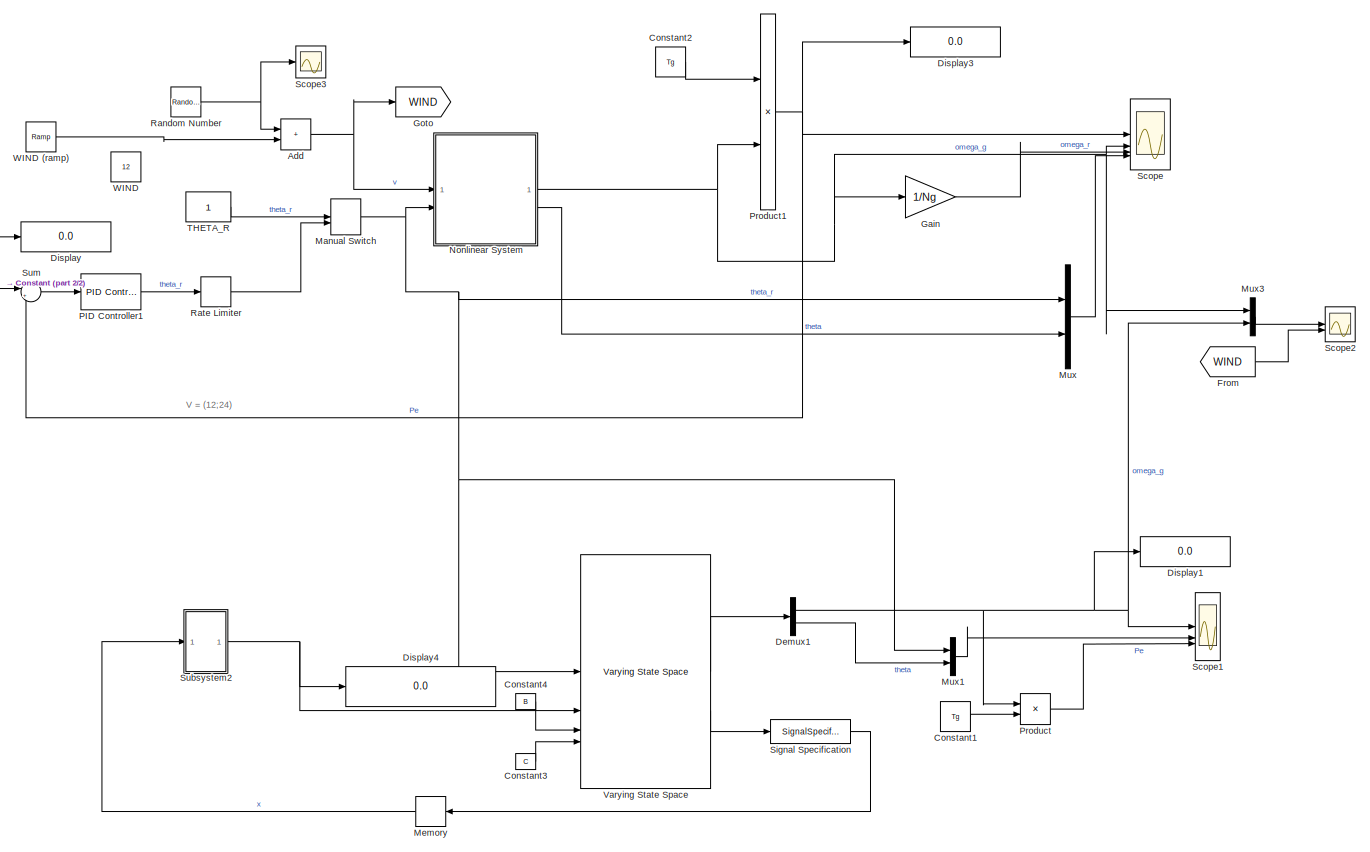
[diagram: root canvas - part 1/2, most of the canvas]
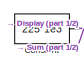
[diagram: root canvas - part 2/2, middle left region]
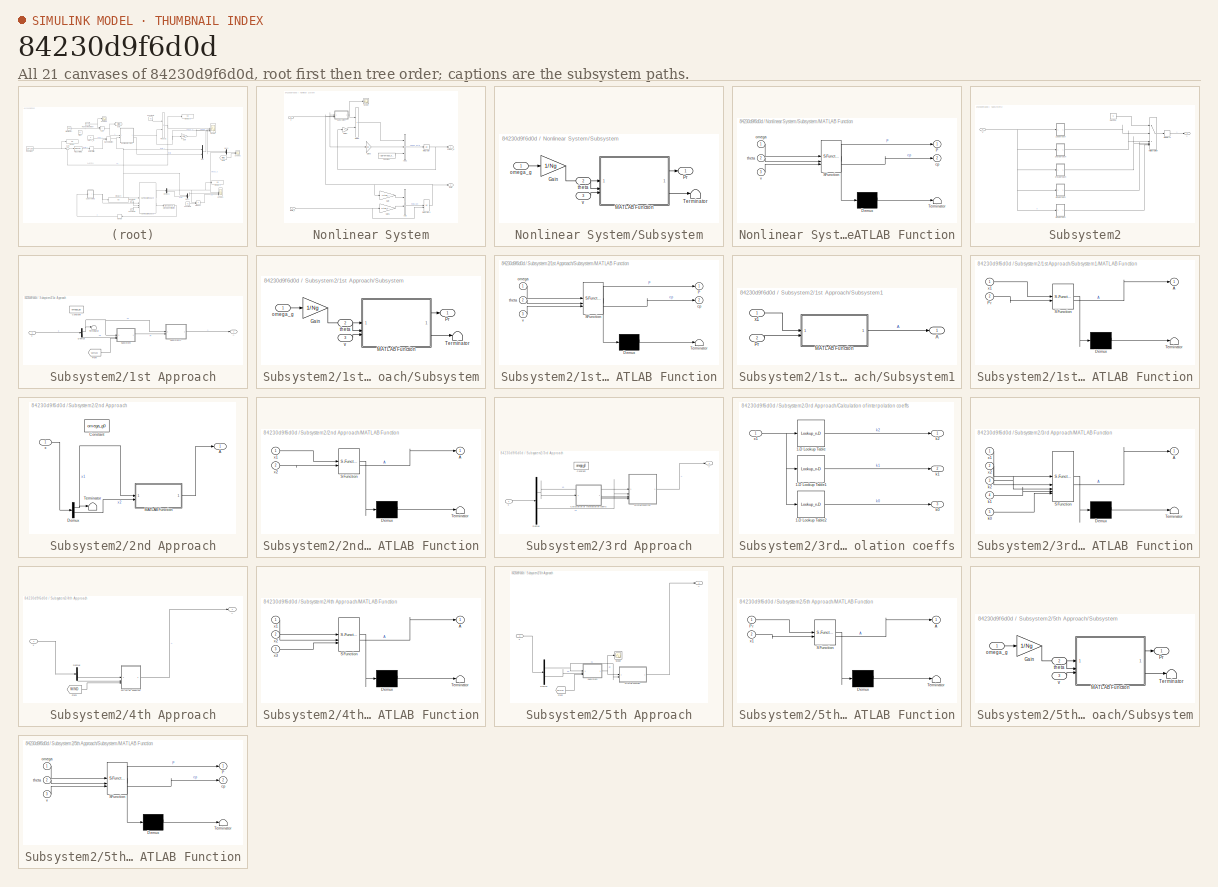
[diagram: thumbnail index - all 21 canvases of the model, root first then tree order]
MODEL slx_84230d9f6d0d
KIND model
CONFIG AbsTol = auto
CONFIG EnableMultiTasking = off
CONFIG FixedStep = 1e-3
CONFIG MaxStep = auto
CONFIG MinStep = auto
CONFIG RelTol = 1e-3
CONFIG SampleTimeConstraint = Unconstrained
CONFIG SolverName = ode8
CONFIG StartTime = 0.0
CONFIG StopTime = 5
BLOCK [Sum] Add
  IconShape = rectangular
BLOCK [Constant] Constant
  Value = 225*1e3
BLOCK [Constant] Constant1
  Value = Tg
BLOCK [Constant] Constant2
  Value = Tg
BLOCK [Constant] Constant3
  Value = C
BLOCK [Constant] Constant4
  Value = B
BLOCK [Demux] Demux1
  Outputs = 2
BLOCK [Display] Display
  Decimation = 1
BLOCK [Display] Display1
  Decimation = 1
BLOCK [Display] Display3
  Decimation = 1
BLOCK [Display] Display4
  Decimation = 1
BLOCK [From] From
  GotoTag = WIND
  TagVisibility = global
BLOCK [Gain] Gain
  Gain = 1/Ng
BLOCK [Goto] Goto
  GotoTag = WIND
  TagVisibility = global
BLOCK [ManualSwitch] Manual Switch
BLOCK [Memory] Memory
  InitialCondition = x0
BLOCK [Mux] Mux
  DisplayOption = bar
  Inputs = 2
BLOCK [Mux] Mux1
  DisplayOption = bar
  Inputs = 2
BLOCK [Mux] Mux3
  DisplayOption = bar
  Inputs = 2
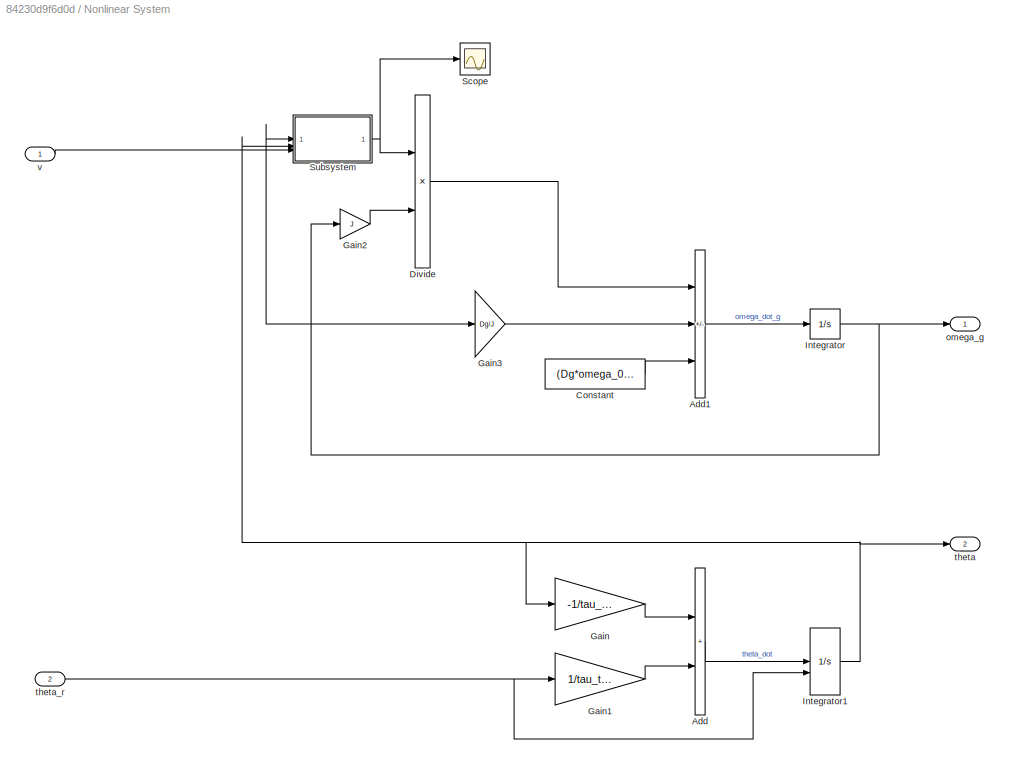
BLOCK [SubSystem] Nonlinear System
BLOCK [Sum] Nonlinear System/Add
  IconShape = rectangular
BLOCK [Sum] Nonlinear System/Add1
  IconShape = rectangular
  Inputs = +-+
BLOCK [Constant] Nonlinear System/Constant
  Value = (Dg*omega_0)/(J*p)
BLOCK [Product] Nonlinear System/Divide
  Inputs = */
BLOCK [Gain] Nonlinear System/Gain
  Gain = -1/tau_theta
BLOCK [Gain] Nonlinear System/Gain1
  Gain = 1/tau_theta
BLOCK [Gain] Nonlinear System/Gain2
  Gain = J
BLOCK [Gain] Nonlinear System/Gain3
  Gain = Dg/J
BLOCK [Integrator] Nonlinear System/Integrator
  InitialCondition = x0(1)
BLOCK [Integrator] Nonlinear System/Integrator1
  InitialCondition = 1
  InitialConditionSource = external
BLOCK [Scope] Nonlinear System/Scope
  Floating = off
  NumInputPorts = 1
  ScopeSpecificationString = Simulink.scopes.TimeScopeBlockCfg('CurrentConfiguration', extmgr.ConfigurationSet(extmgr.Configuration('Core','General UI',true),extmgr.Configuration('Core','Source UI',true),extmgr.Configuration('Sources','WiredSimulink',true,'DataLoggingVariableName','ScopeData2'),extmgr.Configuration('Visuals','Time Domain',true,'SerializedDisplays',{struct('MinYLimReal','-11798.98628','MaxYLimReal','406332.681...<+1402ch>
BLOCK [SubSystem] Nonlinear System/Subsystem
BLOCK [Gain] Nonlinear System/Subsystem/Gain
  Gain = 1/Ng
BLOCK [SubSystem] Nonlinear System/Subsystem/MATLAB Function
  ErrorFcn = Stateflow.Translate.translate
  PermitHierarchicalResolution = ExplicitOnly
  SFBlockType = MATLAB Function
  TreatAsAtomicUnit = on
BLOCK [Demux] Nonlinear System/Subsystem/MATLAB Function/ Demux 
  Outputs = 1
BLOCK [S-Function] Nonlinear System/Subsystem/MATLAB Function/ SFunction 
  EnableBusSupport = on
  FunctionName = sf_sfun
  PortCounts = [3 3]
  SFcnIsStateOwnerBlock = off
  SFunctionDeploymentMode = off
  Tag = Stateflow S-Function 2
BLOCK [Terminator] Nonlinear System/Subsystem/MATLAB Function/ Terminator 
BLOCK [Outport] Nonlinear System/Subsystem/MATLAB Function/P
BLOCK [Outport] Nonlinear System/Subsystem/MATLAB Function/cp
  Port = 2
BLOCK [Inport] Nonlinear System/Subsystem/MATLAB Function/omega
BLOCK [Inport] Nonlinear System/Subsystem/MATLAB Function/theta
  Port = 2
BLOCK [Inport] Nonlinear System/Subsystem/MATLAB Function/v
  Port = 3
BLOCK [Outport] Nonlinear System/Subsystem/Pr
BLOCK [Terminator] Nonlinear System/Subsystem/Terminator
BLOCK [Inport] Nonlinear System/Subsystem/omega_g
  NameLocation = left
BLOCK [Inport] Nonlinear System/Subsystem/theta
  NameLocation = left
  Port = 2
BLOCK [Inport] Nonlinear System/Subsystem/v
  NameLocation = left
  Port = 3
BLOCK [Outport] Nonlinear System/omega_g
BLOCK [Outport] Nonlinear System/theta
  Port = 2
BLOCK [Inport] Nonlinear System/theta_r
  Port = 2
BLOCK [Inport] Nonlinear System/v
BLOCK [Reference] PID Controller1  REF=slpidlib/PID Controller
  LibrarySourceBlock = simulink/Continuous/PID Controller
  SourceBlock = slpidlib/PID Controller
  SourceType = PID 1dof
BLOCK [Product] Product
BLOCK [Product] Product1
BLOCK [RandomNumber] Random Number
  SampleTime = 1e-2
  Variance = 5
BLOCK [RateLimiter] Rate Limiter
  FallingSlewLimit = -theta_dot_max
  RisingSlewLimit = theta_dot_max
  SampleTimeMode = inherited
BLOCK [Scope] Scope
  Floating = off
  NumInputPorts = 4
  ScopeSpecificationString = Simulink.scopes.TimeScopeBlockCfg('CurrentConfiguration', extmgr.ConfigurationSet(extmgr.Configuration('Core','General UI',true),extmgr.Configuration('Core','Source UI',true),extmgr.Configuration('Sources','WiredSimulink',true),extmgr.Configuration('Visuals','Time Domain',true,'SerializedDisplays',{struct('MinYLimReal','224857.3631','MaxYLimReal','225017.12189','YLabelReal','','MinYLimMag','224857...<+4212ch>
BLOCK [Scope] Scope1
  Floating = off
  NumInputPorts = 3
  ScopeSpecificationString = Simulink.scopes.TimeScopeBlockCfg('CurrentConfiguration', extmgr.ConfigurationSet(extmgr.Configuration('Core','General UI',true),extmgr.Configuration('Core','Source UI',true),extmgr.Configuration('Sources','WiredSimulink',true,'DataLoggingVariableName','ScopeData1'),extmgr.Configuration('Visuals','Time Domain',true,'SerializedDisplays',{struct('MinYLimReal','94.33758','MaxYLimReal','107.16179','YL...<+3004ch>
BLOCK [Scope] Scope2
  Floating = off
  NumInputPorts = 2
  ScopeSpecificationString = Simulink.scopes.TimeScopeBlockCfg('CurrentConfiguration', extmgr.ConfigurationSet(extmgr.Configuration('Core','General UI',true),extmgr.Configuration('Core','Source UI',true),extmgr.Configuration('Sources','WiredSimulink',true,'DataLoggingVariableName','ScopeData1'),extmgr.Configuration('Visuals','Time Domain',true,'SerializedDisplays',{struct('MinYLimReal','94.25836','MaxYLimReal','107.87477','YL...<+2635ch>
BLOCK [Scope] Scope3
  Floating = off
  NumInputPorts = 1
  ScopeSpecificationString = Simulink.scopes.TimeScopeBlockCfg('CurrentConfiguration', extmgr.ConfigurationSet(extmgr.Configuration('Core','General UI',true),extmgr.Configuration('Core','Source UI',true),extmgr.Configuration('Sources','WiredSimulink',true,'DataLoggingVariableName','ScopeData2'),extmgr.Configuration('Visuals','Time Domain',true,'SerializedDisplays',{struct('MinYLimReal','-8.12298','MaxYLimReal','8.87018','YLab...<+1372ch>
BLOCK [SignalSpecification] Signal Specification
  Dimensions = [2 1]
BLOCK [SubSystem] Subsystem2
BLOCK [SubSystem] Subsystem2/1st Approach
BLOCK [Outport] Subsystem2/1st Approach/A
BLOCK [Constant] Subsystem2/1st Approach/Constant
  Value = omega_g0
BLOCK [Demux] Subsystem2/1st Approach/Demux
  Outputs = 2
BLOCK [From] Subsystem2/1st Approach/From
  GotoTag = WIND
  TagVisibility = global
BLOCK [SubSystem] Subsystem2/1st Approach/Subsystem
BLOCK [Gain] Subsystem2/1st Approach/Subsystem/Gain
  Gain = 1/Ng
BLOCK [SubSystem] Subsystem2/1st Approach/Subsystem/MATLAB Function
  ErrorFcn = Stateflow.Translate.translate
  PermitHierarchicalResolution = ExplicitOnly
  SFBlockType = MATLAB Function
  TreatAsAtomicUnit = on
BLOCK [Demux] Subsystem2/1st Approach/Subsystem/MATLAB Function/ Demux 
  Outputs = 1
BLOCK [S-Function] Subsystem2/1st Approach/Subsystem/MATLAB Function/ SFunction 
  EnableBusSupport = on
  FunctionName = sf_sfun
  PortCounts = [3 3]
  SFcnIsStateOwnerBlock = off
  SFunctionDeploymentMode = off
  Tag = Stateflow S-Function 3
BLOCK [Terminator] Subsystem2/1st Approach/Subsystem/MATLAB Function/ Terminator 
BLOCK [Outport] Subsystem2/1st Approach/Subsystem/MATLAB Function/P
BLOCK [Outport] Subsystem2/1st Approach/Subsystem/MATLAB Function/cp
  Port = 2
BLOCK [Inport] Subsystem2/1st Approach/Subsystem/MATLAB Function/omega
BLOCK [Inport] Subsystem2/1st Approach/Subsystem/MATLAB Function/theta
  Port = 2
BLOCK [Inport] Subsystem2/1st Approach/Subsystem/MATLAB Function/v
  Port = 3
BLOCK [Outport] Subsystem2/1st Approach/Subsystem/Pr
BLOCK [Terminator] Subsystem2/1st Approach/Subsystem/Terminator
BLOCK [Inport] Subsystem2/1st Approach/Subsystem/omega_g
  NameLocation = left
BLOCK [Inport] Subsystem2/1st Approach/Subsystem/theta
  NameLocation = left
  Port = 2
BLOCK [Inport] Subsystem2/1st Approach/Subsystem/v
  NameLocation = left
  Port = 3
BLOCK [SubSystem] Subsystem2/1st Approach/Subsystem1
BLOCK [Outport] Subsystem2/1st Approach/Subsystem1/A
BLOCK [SubSystem] Subsystem2/1st Approach/Subsystem1/MATLAB Function
  ErrorFcn = Stateflow.Translate.translate
  PermitHierarchicalResolution = ExplicitOnly
  SFBlockType = MATLAB Function
  TreatAsAtomicUnit = on
BLOCK [Demux] Subsystem2/1st Approach/Subsystem1/MATLAB Function/ Demux 
  Outputs = 1
BLOCK [S-Function] Subsystem2/1st Approach/Subsystem1/MATLAB Function/ SFunction 
  EnableBusSupport = on
  FunctionName = sf_sfun
  Parameters = Dg,J,tau_theta
  PortCounts = [2 2]
  SFcnIsStateOwnerBlock = off
  SFunctionDeploymentMode = off
  Tag = Stateflow S-Function 1
BLOCK [Terminator] Subsystem2/1st Approach/Subsystem1/MATLAB Function/ Terminator 
BLOCK [Outport] Subsystem2/1st Approach/Subsystem1/MATLAB Function/A
BLOCK [Inport] Subsystem2/1st Approach/Subsystem1/MATLAB Function/Pr
  Port = 2
BLOCK [Inport] Subsystem2/1st Approach/Subsystem1/MATLAB Function/x1
BLOCK [Inport] Subsystem2/1st Approach/Subsystem1/Pr
  Port = 2
BLOCK [Inport] Subsystem2/1st Approach/Subsystem1/x1
BLOCK [Terminator] Subsystem2/1st Approach/Terminator
BLOCK [Inport] Subsystem2/1st Approach/x
BLOCK [SubSystem] Subsystem2/2nd Approach
BLOCK [Outport] Subsystem2/2nd Approach/A
BLOCK [Constant] Subsystem2/2nd Approach/Constant
  Value = omega_g0
BLOCK [Demux] Subsystem2/2nd Approach/Demux
  Outputs = 2
BLOCK [SubSystem] Subsystem2/2nd Approach/MATLAB Function
  ErrorFcn = Stateflow.Translate.translate
  PermitHierarchicalResolution = ExplicitOnly
  SFBlockType = MATLAB Function
  TreatAsAtomicUnit = on
BLOCK [Demux] Subsystem2/2nd Approach/MATLAB Function/ Demux 
  Outputs = 1
BLOCK [S-Function] Subsystem2/2nd Approach/MATLAB Function/ SFunction 
  EnableBusSupport = on
  FunctionName = sf_sfun
  Parameters = Dg,J,tau_theta
  PortCounts = [2 2]
  SFcnIsStateOwnerBlock = off
  SFunctionDeploymentMode = off
  Tag = Stateflow S-Function 4
BLOCK [Terminator] Subsystem2/2nd Approach/MATLAB Function/ Terminator 
BLOCK [Outport] Subsystem2/2nd Approach/MATLAB Function/A
BLOCK [Inport] Subsystem2/2nd Approach/MATLAB Function/x1
BLOCK [Inport] Subsystem2/2nd Approach/MATLAB Function/x2
  Port = 2
BLOCK [Terminator] Subsystem2/2nd Approach/Terminator
BLOCK [Inport] Subsystem2/2nd Approach/x
BLOCK [SubSystem] Subsystem2/3rd Approach
BLOCK [Outport] Subsystem2/3rd Approach/A
BLOCK [SubSystem] Subsystem2/3rd Approach/Calculation of interpolation coeffs
BLOCK [Lookup_n-D] Subsystem2/3rd Approach/Calculation of interpolation coeffs/1-D Lookup Table
  BreakpointsForDimension1 = omega_g_arr'
  InputPortMap = u0
  InternalRulePriority = Speed
  NumberOfTableDimensions = 1
  RndMeth = Simplest
  Table = k2
BLOCK [Lookup_n-D] Subsystem2/3rd Approach/Calculation of interpolation coeffs/1-D Lookup Table1
  BreakpointsForDimension1 = omega_g_arr'
  InputPortMap = u0
  InternalRulePriority = Speed
  NumberOfTableDimensions = 1
  RndMeth = Simplest
  Table = k1
BLOCK [Lookup_n-D] Subsystem2/3rd Approach/Calculation of interpolation coeffs/1-D Lookup Table2
  BreakpointsForDimension1 = omega_g_arr'
  InputPortMap = u0
  InternalRulePriority = Speed
  NumberOfTableDimensions = 1
  RndMeth = Simplest
  Table = k0
BLOCK [Outport] Subsystem2/3rd Approach/Calculation of interpolation coeffs/k0
  Port = 3
BLOCK [Outport] Subsystem2/3rd Approach/Calculation of interpolation coeffs/k1
  Port = 2
BLOCK [Outport] Subsystem2/3rd Approach/Calculation of interpolation coeffs/k2
BLOCK [Inport] Subsystem2/3rd Approach/Calculation of interpolation coeffs/x1
BLOCK [Constant] Subsystem2/3rd Approach/Constant
  Value = omega_g0
BLOCK [Demux] Subsystem2/3rd Approach/Demux
  Outputs = 2
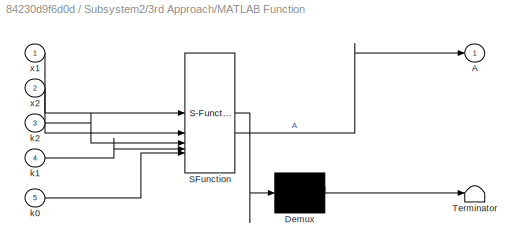
BLOCK [SubSystem] Subsystem2/3rd Approach/MATLAB Function
  ErrorFcn = Stateflow.Translate.translate
  PermitHierarchicalResolution = ExplicitOnly
  SFBlockType = MATLAB Function
  TreatAsAtomicUnit = on
BLOCK [Demux] Subsystem2/3rd Approach/MATLAB Function/ Demux 
  Outputs = 1
BLOCK [S-Function] Subsystem2/3rd Approach/MATLAB Function/ SFunction 
  EnableBusSupport = on
  FunctionName = sf_sfun
  Parameters = Dg,J,tau_theta
  PortCounts = [5 2]
  SFcnIsStateOwnerBlock = off
  SFunctionDeploymentMode = off
  Tag = Stateflow S-Function 5
BLOCK [Terminator] Subsystem2/3rd Approach/MATLAB Function/ Terminator 
BLOCK [Outport] Subsystem2/3rd Approach/MATLAB Function/A
BLOCK [Inport] Subsystem2/3rd Approach/MATLAB Function/k0
  Port = 5
BLOCK [Inport] Subsystem2/3rd Approach/MATLAB Function/k1
  Port = 4
BLOCK [Inport] Subsystem2/3rd Approach/MATLAB Function/k2
  Port = 3
BLOCK [Inport] Subsystem2/3rd Approach/MATLAB Function/x1
BLOCK [Inport] Subsystem2/3rd Approach/MATLAB Function/x2
  Port = 2
BLOCK [Inport] Subsystem2/3rd Approach/x
BLOCK [SubSystem] Subsystem2/4th Approach
BLOCK [Outport] Subsystem2/4th Approach/A
BLOCK [Demux] Subsystem2/4th Approach/Demux
  Outputs = 2
BLOCK [From] Subsystem2/4th Approach/From
  GotoTag = WIND
  TagVisibility = global
BLOCK [SubSystem] Subsystem2/4th Approach/MATLAB Function
  ErrorFcn = Stateflow.Translate.translate
  PermitHierarchicalResolution = ExplicitOnly
  SFBlockType = MATLAB Function
  TreatAsAtomicUnit = on
BLOCK [Demux] Subsystem2/4th Approach/MATLAB Function/ Demux 
  Outputs = 1
BLOCK [S-Function] Subsystem2/4th Approach/MATLAB Function/ SFunction 
  EnableBusSupport = on
  FunctionName = sf_sfun
  Parameters = tau_theta
  PortCounts = [3 2]
  SFcnIsStateOwnerBlock = off
  SFunctionDeploymentMode = off
  Tag = Stateflow S-Function 6
BLOCK [Terminator] Subsystem2/4th Approach/MATLAB Function/ Terminator 
BLOCK [Outport] Subsystem2/4th Approach/MATLAB Function/A
BLOCK [Inport] Subsystem2/4th Approach/MATLAB Function/x1
BLOCK [Inport] Subsystem2/4th Approach/MATLAB Function/x2
  Port = 2
BLOCK [Inport] Subsystem2/4th Approach/MATLAB Function/x3
  Port = 3
BLOCK [Inport] Subsystem2/4th Approach/x
BLOCK [SubSystem] Subsystem2/5th Approach
BLOCK [Outport] Subsystem2/5th Approach/A
BLOCK [Demux] Subsystem2/5th Approach/Demux
  Outputs = 2
BLOCK [From] Subsystem2/5th Approach/From
  GotoTag = WIND
  TagVisibility = global
BLOCK [SubSystem] Subsystem2/5th Approach/MATLAB Function
  ErrorFcn = Stateflow.Translate.translate
  PermitHierarchicalResolution = ExplicitOnly
  SFBlockType = MATLAB Function
  TreatAsAtomicUnit = on
BLOCK [Demux] Subsystem2/5th Approach/MATLAB Function/ Demux 
  Outputs = 1
BLOCK [S-Function] Subsystem2/5th Approach/MATLAB Function/ SFunction 
  EnableBusSupport = on
  FunctionName = sf_sfun
  Parameters = Dg,J,tau_theta
  PortCounts = [2 2]
  SFcnIsStateOwnerBlock = off
  SFunctionDeploymentMode = off
  Tag = Stateflow S-Function 7
BLOCK [Terminator] Subsystem2/5th Approach/MATLAB Function/ Terminator 
BLOCK [Outport] Subsystem2/5th Approach/MATLAB Function/A
BLOCK [Inport] Subsystem2/5th Approach/MATLAB Function/Pr
BLOCK [Inport] Subsystem2/5th Approach/MATLAB Function/x1
  Port = 2
BLOCK [Scope] Subsystem2/5th Approach/Scope
  Floating = off
  NumInputPorts = 1
  ScopeSpecificationString = Simulink.scopes.TimeScopeBlockCfg('CurrentConfiguration', extmgr.ConfigurationSet(extmgr.Configuration('Core','General UI',true),extmgr.Configuration('Core','Source UI',true),extmgr.Configuration('Sources','WiredSimulink',true,'DataLoggingVariableName','ScopeData1'),extmgr.Configuration('Visuals','Time Domain',true,'SerializedDisplays',{struct('MinYLimReal','-22975.78455','MaxYLimReal','463547.218...<+1395ch>
BLOCK [SubSystem] Subsystem2/5th Approach/Subsystem
BLOCK [Gain] Subsystem2/5th Approach/Subsystem/Gain
  Gain = 1/Ng
BLOCK [SubSystem] Subsystem2/5th Approach/Subsystem/MATLAB Function
  ErrorFcn = Stateflow.Translate.translate
  PermitHierarchicalResolution = ExplicitOnly
  SFBlockType = MATLAB Function
  TreatAsAtomicUnit = on
BLOCK [Demux] Subsystem2/5th Approach/Subsystem/MATLAB Function/ Demux 
  Outputs = 1
BLOCK [S-Function] Subsystem2/5th Approach/Subsystem/MATLAB Function/ SFunction 
  EnableBusSupport = on
  FunctionName = sf_sfun
  PortCounts = [3 3]
  SFcnIsStateOwnerBlock = off
  SFunctionDeploymentMode = off
  Tag = Stateflow S-Function 8
BLOCK [Terminator] Subsystem2/5th Approach/Subsystem/MATLAB Function/ Terminator 
BLOCK [Outport] Subsystem2/5th Approach/Subsystem/MATLAB Function/P
BLOCK [Outport] Subsystem2/5th Approach/Subsystem/MATLAB Function/cp
  Port = 2
BLOCK [Inport] Subsystem2/5th Approach/Subsystem/MATLAB Function/omega
BLOCK [Inport] Subsystem2/5th Approach/Subsystem/MATLAB Function/theta
  Port = 2
BLOCK [Inport] Subsystem2/5th Approach/Subsystem/MATLAB Function/v
  Port = 3
BLOCK [Outport] Subsystem2/5th Approach/Subsystem/Pr
BLOCK [Terminator] Subsystem2/5th Approach/Subsystem/Terminator
BLOCK [Inport] Subsystem2/5th Approach/Subsystem/omega_g
  NameLocation = left
BLOCK [Inport] Subsystem2/5th Approach/Subsystem/theta
  NameLocation = left
  Port = 2
BLOCK [Inport] Subsystem2/5th Approach/Subsystem/v
  NameLocation = left
  Port = 3
BLOCK [Inport] Subsystem2/5th Approach/x
BLOCK [Outport] Subsystem2/A
BLOCK [Memory] Subsystem2/Memory1
  InitialCondition = A
BLOCK [MultiPortSwitch] Subsystem2/Multiport Switch
  InputSameDT = off
  Inputs = 5
  SaturateOnIntegerOverflow = off
BLOCK [Constant] Subsystem2/SWITCH
  Value = 5
BLOCK [Inport] Subsystem2/x
BLOCK [Sum] Sum
  Inputs = |+-
BLOCK [Constant] THETA_R
BLOCK [Reference] Varying State Space  REF=cstblocks/Linear Parameter Varying/Varying State Space
  SourceBlock = cstblocks/Linear Parameter Varying/Varying State Space
  SourceType = Varying State Space
BLOCK [Constant] WIND
  Value = 12
BLOCK [Reference] WIND (ramp)  REF=simulink/Sources/Ramp
  SourceBlock = simulink/Sources/Ramp
  SourceType = Ramp
ANNOTATION (root): V = (12;24)
NET Add:1 -> Goto:1, Nonlinear System:1
LINE Constant1:1 -> Product:2
LINE Constant2:1 -> Product1:1
LINE Constant3:1 -> Varying State Space:4
LINE Constant4:1 -> Varying State Space:3
NET Constant:1 -> Display:1, Sum:1
NET Demux1:1 -> Display1:1, Mux3:2, Product:1, Scope1:1
LINE Demux1:2 -> Mux1:2
LINE From:1 -> Scope2:2
LINE Gain:1 -> Scope:3
NET Manual Switch:1 -> Mux1:1, Mux:1, Nonlinear System:2, Varying State Space:1
LINE Memory:1 -> Subsystem2:1
LINE Mux1:1 -> Scope1:2
LINE Mux3:1 -> Scope2:1
LINE Mux:1 -> Scope:4
LINE Nonlinear System/Add1:1 -> Nonlinear System/Integrator:1
LINE Nonlinear System/Add:1 -> Nonlinear System/Integrator1:1
LINE Nonlinear System/Constant:1 -> Nonlinear System/Add1:3
LINE Nonlinear System/Divide:1 -> Nonlinear System/Add1:1
LINE Nonlinear System/Gain1:1 -> Nonlinear System/Add:2
LINE Nonlinear System/Gain2:1 -> Nonlinear System/Divide:2
LINE Nonlinear System/Gain3:1 -> Nonlinear System/Add1:2
LINE Nonlinear System/Gain:1 -> Nonlinear System/Add:1
NET Nonlinear System/Integrator1:1 -> Nonlinear System/Gain:1, Nonlinear System/Subsystem:2, Nonlinear System/theta:1
NET Nonlinear System/Integrator:1 -> Nonlinear System/Gain2:1, Nonlinear System/Gain3:1, Nonlinear System/Subsystem:1, Nonlinear System/omega_g:1
LINE Nonlinear System/Subsystem/Gain:1 -> Nonlinear System/Subsystem/MATLAB Function:1
LINE Nonlinear System/Subsystem/MATLAB Function:1 -> Nonlinear System/Subsystem/Pr:1
LINE Nonlinear System/Subsystem/MATLAB Function:2 -> Nonlinear System/Subsystem/Terminator:1
LINE Nonlinear System/Subsystem/omega_g:1 -> Nonlinear System/Subsystem/Gain:1
LINE Nonlinear System/Subsystem/theta:1 -> Nonlinear System/Subsystem/MATLAB Function:2
LINE Nonlinear System/Subsystem/v:1 -> Nonlinear System/Subsystem/MATLAB Function:3
NET Nonlinear System/Subsystem:1 -> Nonlinear System/Divide:1, Nonlinear System/Scope:1
NET Nonlinear System/theta_r:1 -> Nonlinear System/Gain1:1, Nonlinear System/Integrator1:2
LINE Nonlinear System/v:1 -> Nonlinear System/Subsystem:3
NET Nonlinear System:1 -> Gain:1, Mux3:1, Product1:2, Scope:2
LINE Nonlinear System:2 -> Mux:2
LINE PID Controller1:1 -> Rate Limiter:1
NET Product1:1 -> Display3:1, Scope:1, Sum:2
LINE Product:1 -> Scope1:3
NET Random Number:1 -> Add:1, Scope3:1
LINE Rate Limiter:1 -> Manual Switch:2
LINE Signal Specification:1 -> Memory:1
NET Subsystem2/1st Approach/Demux:1 -> Subsystem2/1st Approach/Subsystem1:1, Subsystem2/1st Approach/Subsystem:1, Subsystem2/1st Approach/Terminator:1
LINE Subsystem2/1st Approach/Demux:2 -> Subsystem2/1st Approach/Subsystem:2
LINE Subsystem2/1st Approach/From:1 -> Subsystem2/1st Approach/Subsystem:3
LINE Subsystem2/1st Approach/Subsystem/Gain:1 -> Subsystem2/1st Approach/Subsystem/MATLAB Function:1
LINE Subsystem2/1st Approach/Subsystem/MATLAB Function:1 -> Subsystem2/1st Approach/Subsystem/Pr:1
LINE Subsystem2/1st Approach/Subsystem/MATLAB Function:2 -> Subsystem2/1st Approach/Subsystem/Terminator:1
LINE Subsystem2/1st Approach/Subsystem/omega_g:1 -> Subsystem2/1st Approach/Subsystem/Gain:1
LINE Subsystem2/1st Approach/Subsystem/theta:1 -> Subsystem2/1st Approach/Subsystem/MATLAB Function:2
LINE Subsystem2/1st Approach/Subsystem/v:1 -> Subsystem2/1st Approach/Subsystem/MATLAB Function:3
LINE Subsystem2/1st Approach/Subsystem1/MATLAB Function:1 -> Subsystem2/1st Approach/Subsystem1/A:1
LINE Subsystem2/1st Approach/Subsystem1/Pr:1 -> Subsystem2/1st Approach/Subsystem1/MATLAB Function:2
LINE Subsystem2/1st Approach/Subsystem1/x1:1 -> Subsystem2/1st Approach/Subsystem1/MATLAB Function:1
LINE Subsystem2/1st Approach/Subsystem1:1 -> Subsystem2/1st Approach/A:1
LINE Subsystem2/1st Approach/Subsystem:1 -> Subsystem2/1st Approach/Subsystem1:2
LINE Subsystem2/1st Approach/x:1 -> Subsystem2/1st Approach/Demux:1
LINE Subsystem2/1st Approach:1 -> Subsystem2/Multiport Switch:2
NET Subsystem2/2nd Approach/Demux:1 -> Subsystem2/2nd Approach/MATLAB Function:1, Subsystem2/2nd Approach/Terminator:1
LINE Subsystem2/2nd Approach/Demux:2 -> Subsystem2/2nd Approach/MATLAB Function:2
LINE Subsystem2/2nd Approach/MATLAB Function:1 -> Subsystem2/2nd Approach/A:1
LINE Subsystem2/2nd Approach/x:1 -> Subsystem2/2nd Approach/Demux:1
LINE Subsystem2/2nd Approach:1 -> Subsystem2/Multiport Switch:3
LINE Subsystem2/3rd Approach/Calculation of interpolation coeffs/1-D Lookup Table1:1 -> Subsystem2/3rd Approach/Calculation of interpolation coeffs/k1:1
LINE Subsystem2/3rd Approach/Calculation of interpolation coeffs/1-D Lookup Table2:1 -> Subsystem2/3rd Approach/Calculation of interpolation coeffs/k0:1
LINE Subsystem2/3rd Approach/Calculation of interpolation coeffs/1-D Lookup Table:1 -> Subsystem2/3rd Approach/Calculation of interpolation coeffs/k2:1
NET Subsystem2/3rd Approach/Calculation of interpolation coeffs/x1:1 -> Subsystem2/3rd Approach/Calculation of interpolation coeffs/1-D Lookup Table1:1, Subsystem2/3rd Approach/Calculation of interpolation coeffs/1-D Lookup Table2:1, Subsystem2/3rd Approach/Calculation of interpolation coeffs/1-D Lookup Table:1
LINE Subsystem2/3rd Approach/Calculation of interpolation coeffs:1 -> Subsystem2/3rd Approach/MATLAB Function:3
LINE Subsystem2/3rd Approach/Calculation of interpolation coeffs:2 -> Subsystem2/3rd Approach/MATLAB Function:4
LINE Subsystem2/3rd Approach/Calculation of interpolation coeffs:3 -> Subsystem2/3rd Approach/MATLAB Function:5
NET Subsystem2/3rd Approach/Demux:1 -> Subsystem2/3rd Approach/Calculation of interpolation coeffs:1, Subsystem2/3rd Approach/MATLAB Function:1
LINE Subsystem2/3rd Approach/Demux:2 -> Subsystem2/3rd Approach/MATLAB Function:2
LINE Subsystem2/3rd Approach/MATLAB Function:1 -> Subsystem2/3rd Approach/A:1
LINE Subsystem2/3rd Approach/x:1 -> Subsystem2/3rd Approach/Demux:1
LINE Subsystem2/3rd Approach:1 -> Subsystem2/Multiport Switch:4
LINE Subsystem2/4th Approach/Demux:1 -> Subsystem2/4th Approach/MATLAB Function:1
LINE Subsystem2/4th Approach/Demux:2 -> Subsystem2/4th Approach/MATLAB Function:2
LINE Subsystem2/4th Approach/From:1 -> Subsystem2/4th Approach/MATLAB Function:3
LINE Subsystem2/4th Approach/MATLAB Function:1 -> Subsystem2/4th Approach/A:1
LINE Subsystem2/4th Approach/x:1 -> Subsystem2/4th Approach/Demux:1
LINE Subsystem2/4th Approach:1 -> Subsystem2/Multiport Switch:5
NET Subsystem2/5th Approach/Demux:1 -> Subsystem2/5th Approach/MATLAB Function:2, Subsystem2/5th Approach/Subsystem:1
LINE Subsystem2/5th Approach/Demux:2 -> Subsystem2/5th Approach/Subsystem:2
LINE Subsystem2/5th Approach/From:1 -> Subsystem2/5th Approach/Subsystem:3
LINE Subsystem2/5th Approach/MATLAB Function:1 -> Subsystem2/5th Approach/A:1
LINE Subsystem2/5th Approach/Subsystem/Gain:1 -> Subsystem2/5th Approach/Subsystem/MATLAB Function:1
LINE Subsystem2/5th Approach/Subsystem/MATLAB Function:1 -> Subsystem2/5th Approach/Subsystem/Pr:1
LINE Subsystem2/5th Approach/Subsystem/MATLAB Function:2 -> Subsystem2/5th Approach/Subsystem/Terminator:1
LINE Subsystem2/5th Approach/Subsystem/omega_g:1 -> Subsystem2/5th Approach/Subsystem/Gain:1
LINE Subsystem2/5th Approach/Subsystem/theta:1 -> Subsystem2/5th Approach/Subsystem/MATLAB Function:2
LINE Subsystem2/5th Approach/Subsystem/v:1 -> Subsystem2/5th Approach/Subsystem/MATLAB Function:3
NET Subsystem2/5th Approach/Subsystem:1 -> Subsystem2/5th Approach/MATLAB Function:1, Subsystem2/5th Approach/Scope:1
LINE Subsystem2/5th Approach/x:1 -> Subsystem2/5th Approach/Demux:1
LINE Subsystem2/5th Approach:1 -> Subsystem2/Multiport Switch:6
LINE Subsystem2/Memory1:1 -> Subsystem2/A:1
LINE Subsystem2/Multiport Switch:1 -> Subsystem2/Memory1:1
LINE Subsystem2/SWITCH:1 -> Subsystem2/Multiport Switch:1
NET Subsystem2/x:1 -> Subsystem2/1st Approach:1, Subsystem2/2nd Approach:1, Subsystem2/3rd Approach:1, Subsystem2/4th Approach:1, Subsystem2/5th Approach:1
NET Subsystem2:1 -> Display4:1, Varying State Space:2
LINE Sum:1 -> PID Controller1:1
LINE THETA_R:1 -> Manual Switch:1
LINE Varying State Space:1 -> Demux1:1
LINE Varying State Space:2 -> Signal Specification:1
LINE WIND (ramp):1 -> Add:2
note: NET lines group one-source signal fan-out (src -> all destinations, sorted); 1:1 wires keep LINE
CHART Subsystem2/1st Approach/Subsystem1/MATLAB Function states=1 transitions=1
  STATE_LABEL 'eML_blk_kernel()'
  STATE_LABEL 'SCRIPT:\nfunction A = getMatrixA(x1,J,Dg,Pr,tau_theta)\n\nKx1 = -Pr/(J*x1^2) - Dg/J;\n\nA = [Kx1 0; 0 -1/tau_theta];\n'
CHART Nonlinear System/Subsystem/MATLAB Function states=1 transitions=1
  STATE_LABEL 'eML_blk_kernel()'
  STATE_LABEL 'SCRIPT:\nfunction [P,cp] = getAerodynamics(omega,theta,v)\n\nR = 14.5;\nrho = 1.2;\n\nlambda = v/(R*omega);\nlambda_t = 1/(1/(lambda^-1 + 0.12*theta) - 0.0035/((1.5*theta)^3 + 1));\n\ncp = 0.22*(116/lambda_t - 0.6*theta - 5)*exp(-12.5/lambda_t);\n\nP = 1/2*rho*pi*(R^2)*(v^3)*cp;\n'  <repeated x3 — deduplicated; at blocks: MATLAB Function>
CHART Subsystem2/1st Approach/Subsystem/MATLAB Function states=1 transitions=1
  STATE_LABEL 'eML_blk_kernel()'
CHART Subsystem2/2nd Approach/MATLAB Function states=1 transitions=1
  STATE_LABEL 'eML_blk_kernel()'
  STATE_LABEL 'SCRIPT:\nfunction A = getMatrixA(x1,x2,J, Dg, tau_theta)\n\np = [-578.851267577174\t-2721.27145157738\t236988.438529495];\n\na11 = - polyval(p,x2)/(J*x1^2) - Dg/J;\na12 = (2*p(1)*x2 + p(2))/(J*x1);\n\nA = [a11 a12; 0 -1/tau_theta];\n'
CHART Subsystem2/3rd Approach/MATLAB Function states=1 transitions=1
  STATE_LABEL 'eML_blk_kernel()'
  STATE_LABEL 'SCRIPT:\nfunction A = getMatrixA(x1,x2,k2,k1,k0,J,Dg,tau_theta)\n\np = [k2\tk1 k0];\n\na11 = - polyval(p,x2)/(J*x1^2) - Dg/J;\na12 = (2*p(1)*x2 + p(2))/(J*x1);\n\nA = [a11 a12; 0 -1/tau_theta];\n'
CHART Subsystem2/4th Approach/MATLAB Function states=1 transitions=1
  STATE_LABEL 'eML_blk_kernel()'
  STATE_LABEL 'SCRIPT:\nfunction A = getMatrixA(x1,x2,x3,tau_theta)\n\nKx1 = (7397514231676928*x3^3*pi*exp(7/(160*((27*x2^3)/8 + 1)) - 25/(2*((3*x2)/25 + (29*x1)/(2*x3))))*((33*x2)/250 - 638/(25*((3*x2)/25 + (29*x1)/(2*x3))) + 2233/(25000*((27*x2^3)/8 + 1)) + 11/10))/(9307497835634805*x1^2) - (68434404157243260928*x3^2*pi*exp(7/(160*((27*x2^3)/8 + 1)) - 25/(2*((3*x2)/25 + (29*x1)/(2*x3)))))/(232687445890870125*x1*(...<+866ch>'
CHART Subsystem2/5th Approach/MATLAB Function states=1 transitions=1
  STATE_LABEL 'eML_blk_kernel()'
  STATE_LABEL 'SCRIPT:\nfunction A = getMatrixA(Pr,x1,Dg, J, tau_theta)\n\nA = [Pr/(J*(x1^2))-Dg/J 0;\n     0 -1/tau_theta];\n'
CHART Subsystem2/5th Approach/Subsystem/MATLAB Function states=1 transitions=1
  STATE_LABEL 'eML_blk_kernel()'
CHART  states=0 transitions=0
CHART  states=0 transitions=0
CHART  states=0 transitions=0
CHART  states=0 transitions=0
CHART  states=0 transitions=0
CHART  states=0 transitions=0
CHART  states=0 transitions=0
CHART  states=0 transitions=0
